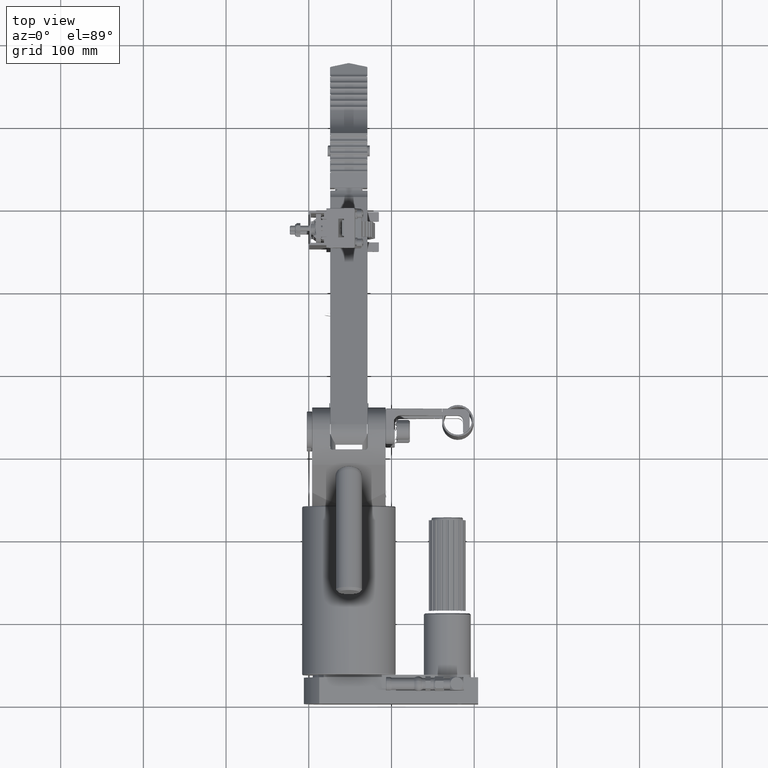
[diagram: clean part render]
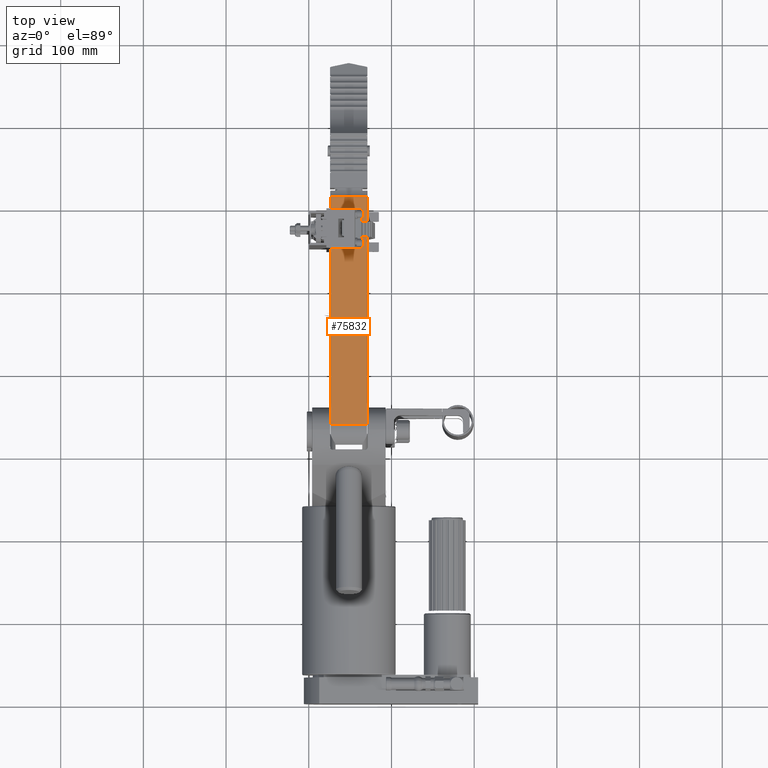
[diagram: same view with one face highlighted and labeled with its STEP entity id]
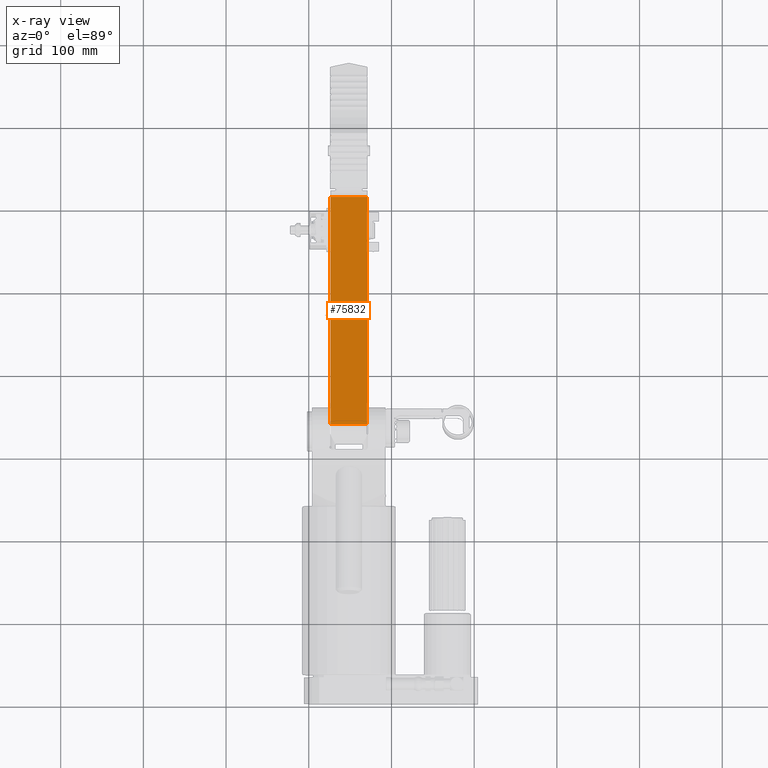
[diagram: x-ray of the same camera — body ghosted, the highlighted face saturated]
A machine part, top view. The second image highlights one B-rep face of the part: STEP entity #75832.
The next image is the same camera in x-ray: the body ghosted, the highlighted face saturated — about 0% of this face is hidden behind the body in this view.
In plain terms, the highlighted planar face has unit normal (-0, -0.2951, -0.9555).
Its self-contained STEP definition (entity closure, byte-faithful):
#19201 = LINE ( 'NONE', #24376, #19207 ) ;
#19203 = LINE ( 'NONE', #24384, #19204 ) ;
#19204 = VECTOR ( 'NONE', #24385, 39.37007874015748100 ) ;
#19205 = LINE ( 'NONE', #24386, #19206 ) ;
#19206 = VECTOR ( 'NONE', #24397, 39.37007874015748100 ) ;
#19207 = VECTOR ( 'NONE', #24398, 39.37007874015748100 ) ;
#19209 = LINE ( 'NONE', #24400, #19213 ) ;
#19213 = VECTOR ( 'NONE', #24409, 39.37007874015748100 ) ;
#24376 = CARTESIAN_POINT ( 'NONE',  ( -0.8659999999999974400, 14.70124828110691700, 2.164985767859123100 ) ) ;
#24384 = CARTESIAN_POINT ( 'NONE',  ( 0.8860000000000012300, 14.70124828110691700, 2.164985767859121800 ) ) ;
#24385 = DIRECTION ( 'NONE',  ( -1.000000000000000000, -1.363943586615040800E-030, 3.673819061467105600E-016 ) ) ;
#24386 = CARTESIAN_POINT ( 'NONE',  ( 0.8860000000000025600, 3.832098403662486800, 5.521629523773460100 ) ) ;
#24397 = DIRECTION ( 'NONE',  ( -1.000000000000000000, -1.363943586615040800E-030, 3.673819061467105600E-016 ) ) ;
#24398 = DIRECTION ( 'NONE',  ( 1.084043442816436000E-016, -0.9554748267737227500, 0.2950726273338896100 ) ) ;
#24400 = CARTESIAN_POINT ( 'NONE',  ( 0.8660000000000005500, 14.70124828110691700, 2.164985767859121800 ) ) ;
#24409 = DIRECTION ( 'NONE',  ( -1.084043442816436000E-016, 0.9554748267737227500, -0.2950726273338896100 ) ) ;
#26946 = CARTESIAN_POINT ( 'NONE',  ( 0.8660000000000017700, 3.832098403662486800, 5.521629523773460100 ) ) ;
#26948 = CARTESIAN_POINT ( 'NONE',  ( -0.8659999999999962200, 3.832098403662486800, 5.521629523773460100 ) ) ;
#26998 = CARTESIAN_POINT ( 'NONE',  ( -0.8659999999999976600, 14.70124828110691700, 2.164985767859123100 ) ) ;
#27000 = CARTESIAN_POINT ( 'NONE',  ( 0.8660000000000009900, 14.70124828110691700, 2.164985767859121800 ) ) ;
#75832 = ADVANCED_FACE ( 'NONE', ( #83526 ), #98746, .F. ) ;
#83526 = FACE_OUTER_BOUND ( 'NONE', #96278, .T. ) ;
#87614 = EDGE_CURVE ( 'NONE', #94057, #94056, #19203, .T. ) ;
#87616 = EDGE_CURVE ( 'NONE', #94029, #94030, #19205, .T. ) ;
#87617 = EDGE_CURVE ( 'NONE', #94056, #94030, #19201, .T. ) ;
#87621 = EDGE_CURVE ( 'NONE', #94029, #94057, #19209, .T. ) ;
#90294 = AXIS2_PLACEMENT_3D ( 'NONE', #98744, #98749, #98750 ) ;
#94029 = VERTEX_POINT ( 'NONE', #26946 ) ;
#94030 = VERTEX_POINT ( 'NONE', #26948 ) ;
#94056 = VERTEX_POINT ( 'NONE', #26998 ) ;
#94057 = VERTEX_POINT ( 'NONE', #27000 ) ;
#96278 = EDGE_LOOP ( 'NONE', ( #99423, #99425, #99426, #99428 ) ) ;
#98744 = CARTESIAN_POINT ( 'NONE',  ( 0.8860000000000012300, 14.70124828110691700, 2.164985767859121800 ) ) ;
#98746 = PLANE ( 'NONE',  #90294 ) ;
#98749 = DIRECTION ( 'NONE',  ( -3.510241631353278900E-016, -0.2950726273338896100, -0.9554748267737227500 ) ) ;
#98750 = DIRECTION ( 'NONE',  ( -1.084043442816436000E-016, 0.9554748267737227500, -0.2950726273338896100 ) ) ;
#99423 = ORIENTED_EDGE ( 'NONE', *, *, #87614, .T. ) ;
#99425 = ORIENTED_EDGE ( 'NONE', *, *, #87617, .T. ) ;
#99426 = ORIENTED_EDGE ( 'NONE', *, *, #87616, .F. ) ;
#99428 = ORIENTED_EDGE ( 'NONE', *, *, #87621, .T. ) ;